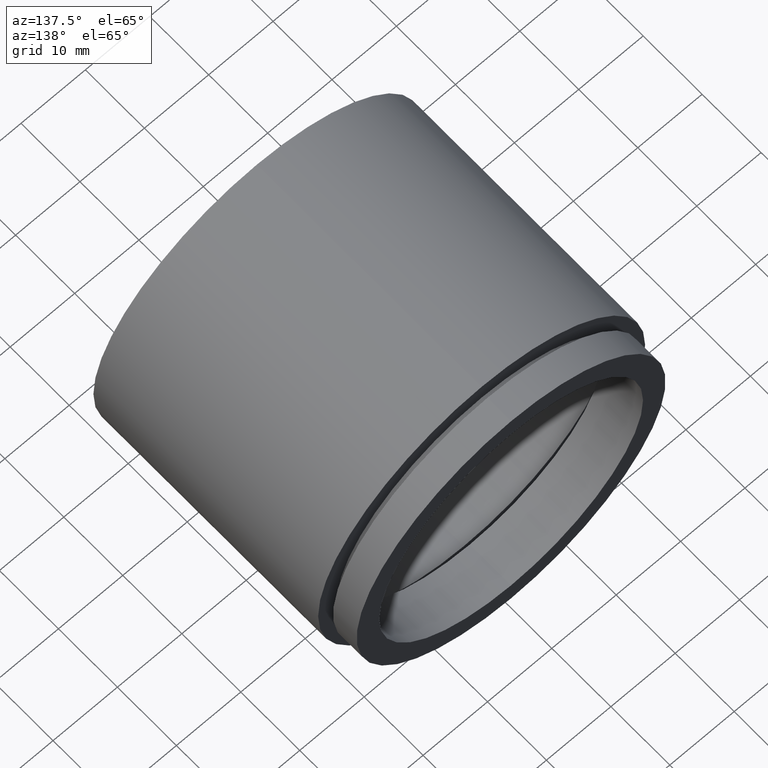
[diagram: clean part render]
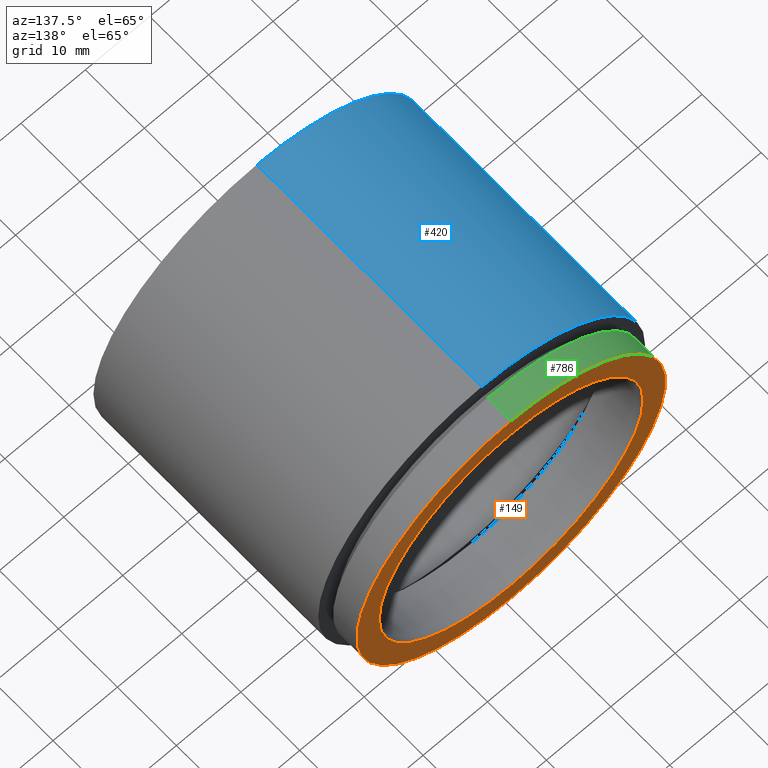
[diagram: same view with three faces highlighted in distinct colors, each labeled with its STEP entity id]
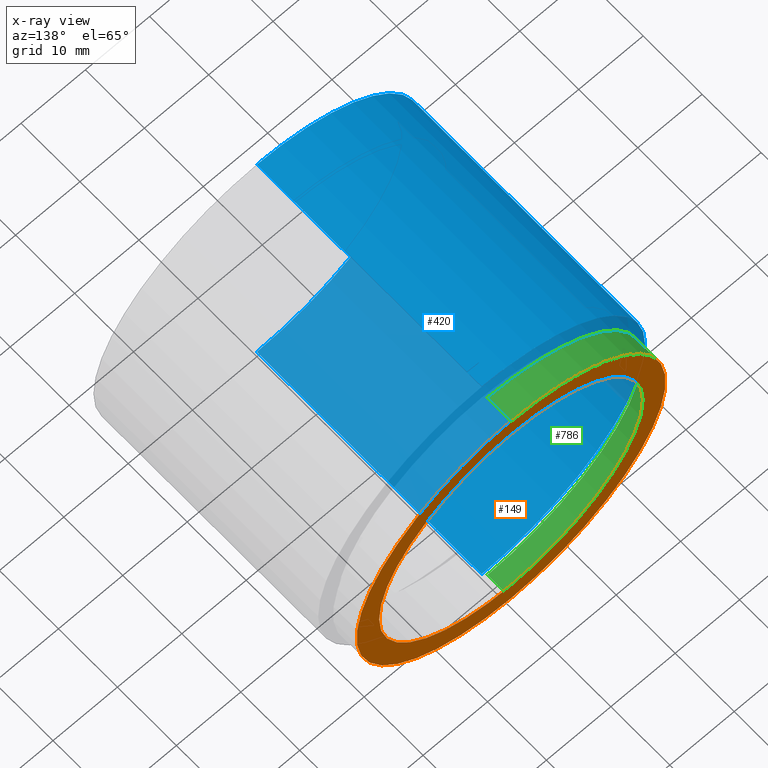
[diagram: x-ray of the same camera — body ghosted, the three highlighted faces saturated]
A machine part, auxiliary view with three faces highlighted in distinct colors.
The next image is the same camera in x-ray (body ghosted, the three faces saturated) — at least one of them is partly hidden behind the body in this view.
Their STEP definitions:

[orange] entity #149 — the highlighted planar face has unit normal (0, -1, 0).
#3 = ORIENTED_EDGE ( 'NONE', *, *, #67, .T. ) ;
#9 = EDGE_CURVE ( 'NONE', #356, #752, #155, .T. ) ;
#67 = EDGE_CURVE ( 'NONE', #83, #673, #538, .T. ) ;
#83 = VERTEX_POINT ( 'NONE', #569 ) ;
#141 = DIRECTION ( 'NONE',  ( -0.0000000000000000000, 1.000000000000000000, -0.0000000000000000000 ) ) ;
#149 = ADVANCED_FACE ( 'NONE', ( #616, #474 ), #455, .F. ) ;
#155 = CIRCLE ( 'NONE', #658, 20.50000000000001400 ) ;
#169 = EDGE_LOOP ( 'NONE', ( #437, #642 ) ) ;
#176 = ORIENTED_EDGE ( 'NONE', *, *, #811, .T. ) ;
#195 = DIRECTION ( 'NONE',  ( 0.0000000000000000000, 0.0000000000000000000, 1.000000000000000000 ) ) ;
#258 = CARTESIAN_POINT ( 'NONE',  ( 0.0000000000000000000, 43.09999999999998700, 0.0000000000000000000 ) ) ;
#269 = CARTESIAN_POINT ( 'NONE',  ( 0.0000000000000000000, 43.09999999999998700, 20.50000000000001400 ) ) ;
#320 = EDGE_LOOP ( 'NONE', ( #176, #3 ) ) ;
#344 = DIRECTION ( 'NONE',  ( 0.0000000000000000000, -0.0000000000000000000, -1.000000000000000000 ) ) ;
#353 = CARTESIAN_POINT ( 'NONE',  ( 2.510525938252075700E-015, 43.09999999999998700, -20.50000000000001400 ) ) ;
#356 = VERTEX_POINT ( 'NONE', #353 ) ;
#389 = DIRECTION ( 'NONE',  ( -0.0000000000000000000, 1.000000000000000000, -0.0000000000000000000 ) ) ;
#396 = DIRECTION ( 'NONE',  ( -0.0000000000000000000, 1.000000000000000000, -0.0000000000000000000 ) ) ;
#399 = CARTESIAN_POINT ( 'NONE',  ( 0.0000000000000000000, 43.09999999999998700, 0.0000000000000000000 ) ) ;
#428 = CIRCLE ( 'NONE', #467, 24.00000000000001400 ) ;
#437 = ORIENTED_EDGE ( 'NONE', *, *, #720, .F. ) ;
#444 = CARTESIAN_POINT ( 'NONE',  ( 0.0000000000000000000, 43.09999999999998700, 0.0000000000000000000 ) ) ;
#455 = PLANE ( 'NONE',  #531 ) ;
#460 = CARTESIAN_POINT ( 'NONE',  ( 20.50000000000001400, 43.09999999999998700, 0.0000000000000000000 ) ) ;
#465 = AXIS2_PLACEMENT_3D ( 'NONE', #500, #396, #505 ) ;
#467 = AXIS2_PLACEMENT_3D ( 'NONE', #399, #141, #591 ) ;
#474 = FACE_OUTER_BOUND ( 'NONE', #320, .T. ) ;
#500 = CARTESIAN_POINT ( 'NONE',  ( 0.0000000000000000000, 43.09999999999998700, 0.0000000000000000000 ) ) ;
#505 = DIRECTION ( 'NONE',  ( 0.0000000000000000000, 0.0000000000000000000, 1.000000000000000000 ) ) ;
#510 = CARTESIAN_POINT ( 'NONE',  ( 0.0000000000000000000, 43.09999999999998700, 24.00000000000001400 ) ) ;
#531 = AXIS2_PLACEMENT_3D ( 'NONE', #460, #765, #344 ) ;
#534 = CIRCLE ( 'NONE', #541, 20.50000000000001400 ) ;
#538 = CIRCLE ( 'NONE', #465, 24.00000000000001400 ) ;
#541 = AXIS2_PLACEMENT_3D ( 'NONE', #258, #389, #631 ) ;
#569 = CARTESIAN_POINT ( 'NONE',  ( 2.939152317953649500E-015, 43.09999999999998700, -24.00000000000001400 ) ) ;
#573 = DIRECTION ( 'NONE',  ( -0.0000000000000000000, 1.000000000000000000, -0.0000000000000000000 ) ) ;
#591 = DIRECTION ( 'NONE',  ( 0.0000000000000000000, 0.0000000000000000000, 1.000000000000000000 ) ) ;
#616 = FACE_BOUND ( 'NONE', #169, .T. ) ;
#631 = DIRECTION ( 'NONE',  ( 0.0000000000000000000, 0.0000000000000000000, 1.000000000000000000 ) ) ;
#642 = ORIENTED_EDGE ( 'NONE', *, *, #9, .F. ) ;
#658 = AXIS2_PLACEMENT_3D ( 'NONE', #444, #573, #195 ) ;
#673 = VERTEX_POINT ( 'NONE', #510 ) ;
#720 = EDGE_CURVE ( 'NONE', #752, #356, #534, .T. ) ;
#752 = VERTEX_POINT ( 'NONE', #269 ) ;
#765 = DIRECTION ( 'NONE',  ( 0.0000000000000000000, -1.000000000000000000, 0.0000000000000000000 ) ) ;
#811 = EDGE_CURVE ( 'NONE', #673, #83, #428, .T. ) ;

[blue] entity #420 — the highlighted cylindrical surface (partial cylindrical patch) has radius 25.4 mm, axis along (-0, 1, -0).
#38 = DIRECTION ( 'NONE',  ( 0.0000000000000000000, 0.0000000000000000000, 1.000000000000000000 ) ) ;
#39 = AXIS2_PLACEMENT_3D ( 'NONE', #577, #508, #568 ) ;
#89 = DIRECTION ( 'NONE',  ( 0.0000000000000000000, 0.0000000000000000000, 1.000000000000000000 ) ) ;
#152 = DIRECTION ( 'NONE',  ( -0.0000000000000000000, 1.000000000000000000, -0.0000000000000000000 ) ) ;
#160 = DIRECTION ( 'NONE',  ( -0.0000000000000000000, 1.000000000000000000, -0.0000000000000000000 ) ) ;
#167 = ORIENTED_EDGE ( 'NONE', *, *, #280, .F. ) ;
#249 = VERTEX_POINT ( 'NONE', #597 ) ;
#252 = VERTEX_POINT ( 'NONE', #782 ) ;
#267 = CARTESIAN_POINT ( 'NONE',  ( 0.0000000000000000000, 38.09999999999999400, 25.40000000000001600 ) ) ;
#280 = EDGE_CURVE ( 'NONE', #249, #252, #503, .T. ) ;
#314 = LINE ( 'NONE', #743, #679 ) ;
#315 = EDGE_CURVE ( 'NONE', #252, #750, #553, .T. ) ;
#319 = DIRECTION ( 'NONE',  ( -0.0000000000000000000, 1.000000000000000000, -0.0000000000000000000 ) ) ;
#365 = VECTOR ( 'NONE', #152, 1000.000000000000000 ) ;
#408 = ORIENTED_EDGE ( 'NONE', *, *, #676, .T. ) ;
#409 = ORIENTED_EDGE ( 'NONE', *, *, #578, .T. ) ;
#412 = DIRECTION ( 'NONE',  ( -0.0000000000000000000, 1.000000000000000000, -0.0000000000000000000 ) ) ;
#420 = ADVANCED_FACE ( 'NONE', ( #632 ), #651, .T. ) ;
#503 = LINE ( 'NONE', #600, #365 ) ;
#508 = DIRECTION ( 'NONE',  ( -0.0000000000000000000, 1.000000000000000000, -0.0000000000000000000 ) ) ;
#517 = ORIENTED_EDGE ( 'NONE', *, *, #315, .F. ) ;
#523 = AXIS2_PLACEMENT_3D ( 'NONE', #677, #160, #38 ) ;
#553 = CIRCLE ( 'NONE', #714, 25.40000000000001600 ) ;
#563 = EDGE_LOOP ( 'NONE', ( #167, #408, #409, #517 ) ) ;
#568 = DIRECTION ( 'NONE',  ( 0.0000000000000000000, 0.0000000000000000000, 1.000000000000000000 ) ) ;
#577 = CARTESIAN_POINT ( 'NONE',  ( 0.0000000000000000000, -2.775557561562891400E-014, 0.0000000000000000000 ) ) ;
#578 = EDGE_CURVE ( 'NONE', #732, #750, #314, .T. ) ;
#592 = CARTESIAN_POINT ( 'NONE',  ( 0.0000000000000000000, 38.09999999999999400, 0.0000000000000000000 ) ) ;
#597 = CARTESIAN_POINT ( 'NONE',  ( 3.110602869834279600E-015, -2.775557561562891400E-014, -25.40000000000002000 ) ) ;
#600 = CARTESIAN_POINT ( 'NONE',  ( 3.110602869834279600E-015, 161.3761669434274500, -25.40000000000002000 ) ) ;
#632 = FACE_OUTER_BOUND ( 'NONE', #563, .T. ) ;
#651 = CYLINDRICAL_SURFACE ( 'NONE', #523, 25.40000000000002000 ) ;
#660 = CIRCLE ( 'NONE', #39, 25.40000000000002000 ) ;
#676 = EDGE_CURVE ( 'NONE', #249, #732, #660, .T. ) ;
#677 = CARTESIAN_POINT ( 'NONE',  ( 0.0000000000000000000, 161.3761669434274500, 0.0000000000000000000 ) ) ;
#679 = VECTOR ( 'NONE', #319, 1000.000000000000000 ) ;
#714 = AXIS2_PLACEMENT_3D ( 'NONE', #592, #412, #89 ) ;
#732 = VERTEX_POINT ( 'NONE', #760 ) ;
#743 = CARTESIAN_POINT ( 'NONE',  ( 0.0000000000000000000, 161.3761669434274500, 25.40000000000002000 ) ) ;
#750 = VERTEX_POINT ( 'NONE', #267 ) ;
#760 = CARTESIAN_POINT ( 'NONE',  ( 0.0000000000000000000, -2.775557561562891400E-014, 25.40000000000002000 ) ) ;
#782 = CARTESIAN_POINT ( 'NONE',  ( 3.110602869834279200E-015, 38.09999999999999400, -25.40000000000001600 ) ) ;

[green] entity #786 — the highlighted cylindrical surface (partial cylindrical patch) has radius 24 mm, axis along (-0, 1, -0).
#48 = EDGE_CURVE ( 'NONE', #662, #83, #438, .T. ) ;
#67 = EDGE_CURVE ( 'NONE', #83, #673, #538, .T. ) ;
#72 = CARTESIAN_POINT ( 'NONE',  ( 0.0000000000000000000, 161.3761669434274500, 0.0000000000000000000 ) ) ;
#83 = VERTEX_POINT ( 'NONE', #569 ) ;
#139 = CARTESIAN_POINT ( 'NONE',  ( 0.0000000000000000000, 39.09999999999999400, 0.0000000000000000000 ) ) ;
#178 = AXIS2_PLACEMENT_3D ( 'NONE', #139, #708, #767 ) ;
#181 = EDGE_CURVE ( 'NONE', #662, #300, #298, .T. ) ;
#220 = FACE_OUTER_BOUND ( 'NONE', #462, .T. ) ;
#272 = VECTOR ( 'NONE', #688, 1000.000000000000000 ) ;
#298 = CIRCLE ( 'NONE', #178, 24.00000000000001400 ) ;
#300 = VERTEX_POINT ( 'NONE', #352 ) ;
#333 = DIRECTION ( 'NONE',  ( -0.0000000000000000000, 1.000000000000000000, -0.0000000000000000000 ) ) ;
#352 = CARTESIAN_POINT ( 'NONE',  ( 0.0000000000000000000, 39.09999999999999400, 24.00000000000001400 ) ) ;
#380 = CARTESIAN_POINT ( 'NONE',  ( 0.0000000000000000000, 161.3761669434274500, 24.00000000000001400 ) ) ;
#387 = CARTESIAN_POINT ( 'NONE',  ( 2.939152317953649500E-015, 161.3761669434274500, -24.00000000000001400 ) ) ;
#395 = VECTOR ( 'NONE', #333, 1000.000000000000000 ) ;
#396 = DIRECTION ( 'NONE',  ( -0.0000000000000000000, 1.000000000000000000, -0.0000000000000000000 ) ) ;
#407 = ORIENTED_EDGE ( 'NONE', *, *, #612, .T. ) ;
#427 = AXIS2_PLACEMENT_3D ( 'NONE', #72, #757, #769 ) ;
#438 = LINE ( 'NONE', #387, #395 ) ;
#462 = EDGE_LOOP ( 'NONE', ( #713, #497, #407, #504 ) ) ;
#465 = AXIS2_PLACEMENT_3D ( 'NONE', #500, #396, #505 ) ;
#497 = ORIENTED_EDGE ( 'NONE', *, *, #181, .T. ) ;
#500 = CARTESIAN_POINT ( 'NONE',  ( 0.0000000000000000000, 43.09999999999998700, 0.0000000000000000000 ) ) ;
#504 = ORIENTED_EDGE ( 'NONE', *, *, #67, .F. ) ;
#505 = DIRECTION ( 'NONE',  ( 0.0000000000000000000, 0.0000000000000000000, 1.000000000000000000 ) ) ;
#510 = CARTESIAN_POINT ( 'NONE',  ( 0.0000000000000000000, 43.09999999999998700, 24.00000000000001400 ) ) ;
#538 = CIRCLE ( 'NONE', #465, 24.00000000000001400 ) ;
#569 = CARTESIAN_POINT ( 'NONE',  ( 2.939152317953649500E-015, 43.09999999999998700, -24.00000000000001400 ) ) ;
#612 = EDGE_CURVE ( 'NONE', #300, #673, #737, .T. ) ;
#662 = VERTEX_POINT ( 'NONE', #803 ) ;
#667 = CYLINDRICAL_SURFACE ( 'NONE', #427, 24.00000000000001400 ) ;
#673 = VERTEX_POINT ( 'NONE', #510 ) ;
#688 = DIRECTION ( 'NONE',  ( -0.0000000000000000000, 1.000000000000000000, -0.0000000000000000000 ) ) ;
#708 = DIRECTION ( 'NONE',  ( -0.0000000000000000000, 1.000000000000000000, -0.0000000000000000000 ) ) ;
#713 = ORIENTED_EDGE ( 'NONE', *, *, #48, .F. ) ;
#737 = LINE ( 'NONE', #380, #272 ) ;
#757 = DIRECTION ( 'NONE',  ( -0.0000000000000000000, 1.000000000000000000, -0.0000000000000000000 ) ) ;
#767 = DIRECTION ( 'NONE',  ( 0.0000000000000000000, 0.0000000000000000000, 1.000000000000000000 ) ) ;
#769 = DIRECTION ( 'NONE',  ( 0.0000000000000000000, 0.0000000000000000000, 1.000000000000000000 ) ) ;
#786 = ADVANCED_FACE ( 'NONE', ( #220 ), #667, .T. ) ;
#803 = CARTESIAN_POINT ( 'NONE',  ( 2.939152317953649500E-015, 39.09999999999999400, -24.00000000000001400 ) ) ;